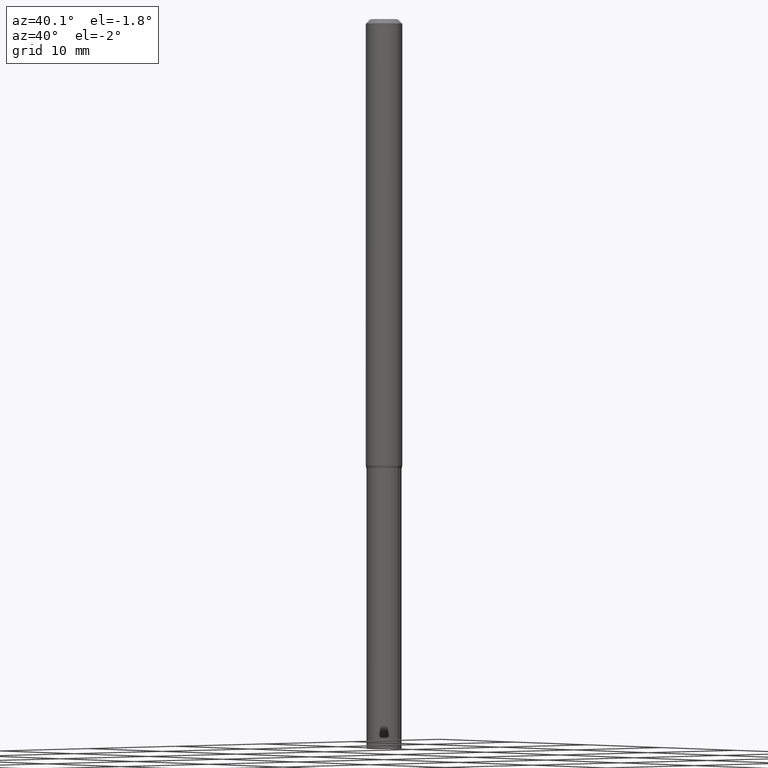
[diagram: clean part render]
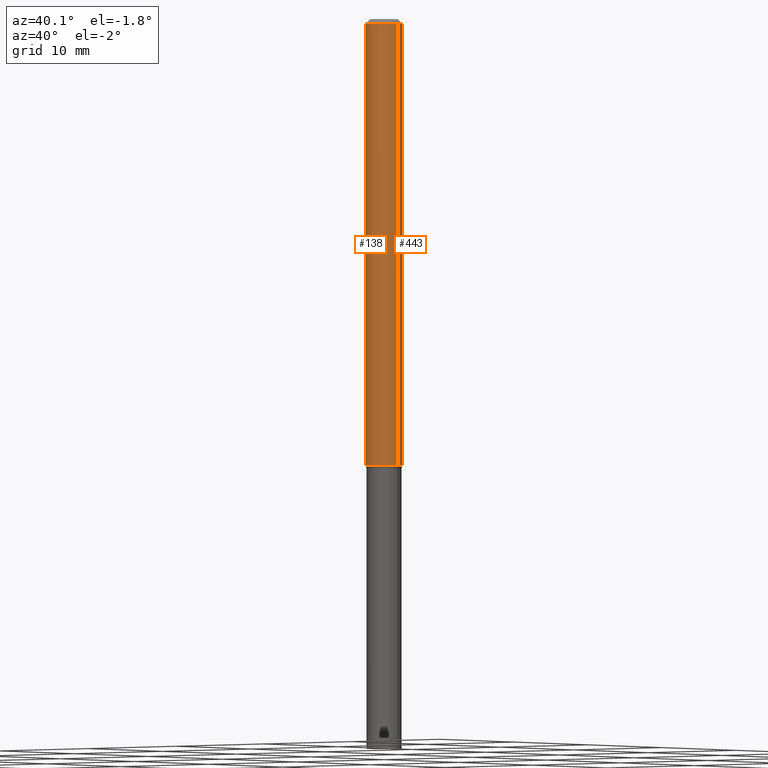
[diagram: same view with one multi-face feature highlighted, each face labeled with its STEP entity id]
A machine part, auxiliary view. The highlighted faces form ONE feature: a constant-radius fillet chain: 2 tangent blend faces with common blend radius 1.5875 mm. The faces share edges in the B-rep.
Their STEP definitions:
[1] entity #443 (Cylinder):
#3 = DIRECTION ( 'NONE',  ( 1.000000000000000000, -6.982962677686266711E-15, 0.000000000000000000 ) ) ;
#58 = DIRECTION ( 'NONE',  ( -2.445468806185136597E-29, 3.491481338843145583E-15, 1.000000000000000000 ) ) ;
#59 = EDGE_CURVE ( 'NONE', #382, #183, #306, .T. ) ;
#61 = CARTESIAN_POINT ( 'NONE',  ( 0.000000000000000000, 0.000000000000000000, 0.000000000000000000 ) ) ;
#96 = EDGE_CURVE ( 'NONE', #382, #196, #347, .T. ) ;
#131 = CARTESIAN_POINT ( 'NONE',  ( 3.743205426942595148E-29, -5.344305297442846949E-15, -1.530669872981079482 ) ) ;
#137 = DIRECTION ( 'NONE',  ( -2.445468806185136877E-29, 3.491481338843145188E-15, 1.000000000000000000 ) ) ;
#142 = AXIS2_PLACEMENT_3D ( 'NONE', #61, #318, #357 ) ;
#151 = EDGE_LOOP ( 'NONE', ( #336, #190, #258, #274 ) ) ;
#165 = AXIS2_PLACEMENT_3D ( 'NONE', #131, #58, #321 ) ;
#173 = EDGE_CURVE ( 'NONE', #196, #216, #448, .T. ) ;
#180 = CARTESIAN_POINT ( 'NONE',  ( 3.668203209277705088E-31, -5.237222008264718399E-17, -0.01499999999999999944 ) ) ;
#181 = DIRECTION ( 'NONE',  ( -2.445468806185136597E-29, 3.491481338843145583E-15, 1.000000000000000000 ) ) ;
#183 = VERTEX_POINT ( 'NONE', #194 ) ;
#190 = ORIENTED_EDGE ( 'NONE', *, *, #289, .T. ) ;
#194 = CARTESIAN_POINT ( 'NONE',  ( -0.06250000000000000000, -4.900216087592785122E-15, -1.530669872981079482 ) ) ;
#196 = VERTEX_POINT ( 'NONE', #231 ) ;
#216 = VERTEX_POINT ( 'NONE', #300 ) ;
#229 = AXIS2_PLACEMENT_3D ( 'NONE', #180, #181, #3 ) ;
#231 = CARTESIAN_POINT ( 'NONE',  ( 0.06250000000000000000, -4.888073874380388472E-16, -0.01499999999999999944 ) ) ;
#245 = DIRECTION ( 'NONE',  ( -2.445468806185136877E-29, 3.491481338843145188E-15, 1.000000000000000000 ) ) ;
#258 = ORIENTED_EDGE ( 'NONE', *, *, #173, .F. ) ;
#274 = ORIENTED_EDGE ( 'NONE', *, *, #96, .F. ) ;
#279 = CARTESIAN_POINT ( 'NONE',  ( 0.06250000000000000000, -5.780740464798238618E-15, -1.530669872981079482 ) ) ;
#289 = EDGE_CURVE ( 'NONE', #183, #216, #422, .T. ) ;
#300 = CARTESIAN_POINT ( 'NONE',  ( -0.06250000000000000000, -2.254249548912684990E-15, -0.01499999999999999944 ) ) ;
#306 = CIRCLE ( 'NONE', #165, 0.06250000000000000000 ) ;
#318 = DIRECTION ( 'NONE',  ( -2.445468806185136597E-29, 3.491481338843145583E-15, 1.000000000000000000 ) ) ;
#321 = DIRECTION ( 'NONE',  ( 1.000000000000000000, -6.982962677686262766E-15, 0.000000000000000000 ) ) ;
#336 = ORIENTED_EDGE ( 'NONE', *, *, #59, .T. ) ;
#347 = LINE ( 'NONE', #457, #465 ) ;
#357 = DIRECTION ( 'NONE',  ( 1.000000000000000000, -6.982962677686266711E-15, 4.876176775795935793E-29 ) ) ;
#382 = VERTEX_POINT ( 'NONE', #279 ) ;
#387 = FACE_OUTER_BOUND ( 'NONE', #151, .T. ) ;
#390 = CYLINDRICAL_SURFACE ( 'NONE', #142, 0.06250000000000000000 ) ;
#422 = LINE ( 'NONE', #430, #463 ) ;
#430 = CARTESIAN_POINT ( 'NONE',  ( -0.06250000000000000000, 4.440892098500626162E-16, -3.074334431409316114E-30 ) ) ;
#443 = ADVANCED_FACE ( 'NONE', ( #387 ), #390, .T. ) ;
#448 = CIRCLE ( 'NONE', #229, 0.06250000000000000000 ) ;
#457 = CARTESIAN_POINT ( 'NONE',  ( 0.06250000000000000000, -4.364351673553916694E-16, 3.047610484872459871E-30 ) ) ;
#463 = VECTOR ( 'NONE', #137, 39.37007874015748143 ) ;
#465 = VECTOR ( 'NONE', #245, 39.37007874015748143 ) ;
[2] entity #138 (Cylinder):
#29 = CARTESIAN_POINT ( 'NONE',  ( 3.668203209277705088E-31, -5.237222008264718399E-17, -0.01499999999999999944 ) ) ;
#43 = AXIS2_PLACEMENT_3D ( 'NONE', #69, #304, #212 ) ;
#69 = CARTESIAN_POINT ( 'NONE',  ( 0.000000000000000000, 0.000000000000000000, 0.000000000000000000 ) ) ;
#71 = AXIS2_PLACEMENT_3D ( 'NONE', #29, #100, #466 ) ;
#96 = EDGE_CURVE ( 'NONE', #382, #196, #347, .T. ) ;
#100 = DIRECTION ( 'NONE',  ( -2.445468806185136597E-29, 3.491481338843145583E-15, 1.000000000000000000 ) ) ;
#110 = EDGE_CURVE ( 'NONE', #183, #382, #360, .T. ) ;
#137 = DIRECTION ( 'NONE',  ( -2.445468806185136877E-29, 3.491481338843145188E-15, 1.000000000000000000 ) ) ;
#138 = ADVANCED_FACE ( 'NONE', ( #464 ), #144, .T. ) ;
#144 = CYLINDRICAL_SURFACE ( 'NONE', #43, 0.06250000000000000000 ) ;
#160 = ORIENTED_EDGE ( 'NONE', *, *, #96, .T. ) ;
#183 = VERTEX_POINT ( 'NONE', #194 ) ;
#193 = ORIENTED_EDGE ( 'NONE', *, *, #110, .T. ) ;
#194 = CARTESIAN_POINT ( 'NONE',  ( -0.06250000000000000000, -4.900216087592785122E-15, -1.530669872981079482 ) ) ;
#196 = VERTEX_POINT ( 'NONE', #231 ) ;
#212 = DIRECTION ( 'NONE',  ( 1.000000000000000000, -6.982962677686266711E-15, 4.876176775795935793E-29 ) ) ;
#214 = CIRCLE ( 'NONE', #71, 0.06250000000000000000 ) ;
#216 = VERTEX_POINT ( 'NONE', #300 ) ;
#231 = CARTESIAN_POINT ( 'NONE',  ( 0.06250000000000000000, -4.888073874380388472E-16, -0.01499999999999999944 ) ) ;
#238 = ORIENTED_EDGE ( 'NONE', *, *, #312, .F. ) ;
#240 = CARTESIAN_POINT ( 'NONE',  ( 3.743205426942595148E-29, -5.344305297442846949E-15, -1.530669872981079482 ) ) ;
#245 = DIRECTION ( 'NONE',  ( -2.445468806185136877E-29, 3.491481338843145188E-15, 1.000000000000000000 ) ) ;
#279 = CARTESIAN_POINT ( 'NONE',  ( 0.06250000000000000000, -5.780740464798238618E-15, -1.530669872981079482 ) ) ;
#280 = DIRECTION ( 'NONE',  ( 1.000000000000000000, -6.982962677686262766E-15, 0.000000000000000000 ) ) ;
#289 = EDGE_CURVE ( 'NONE', #183, #216, #422, .T. ) ;
#300 = CARTESIAN_POINT ( 'NONE',  ( -0.06250000000000000000, -2.254249548912684990E-15, -0.01499999999999999944 ) ) ;
#304 = DIRECTION ( 'NONE',  ( -2.445468806185136597E-29, 3.491481338843145583E-15, 1.000000000000000000 ) ) ;
#312 = EDGE_CURVE ( 'NONE', #216, #196, #214, .T. ) ;
#334 = ORIENTED_EDGE ( 'NONE', *, *, #289, .F. ) ;
#347 = LINE ( 'NONE', #457, #465 ) ;
#360 = CIRCLE ( 'NONE', #417, 0.06250000000000000000 ) ;
#370 = EDGE_LOOP ( 'NONE', ( #334, #193, #160, #238 ) ) ;
#382 = VERTEX_POINT ( 'NONE', #279 ) ;
#417 = AXIS2_PLACEMENT_3D ( 'NONE', #240, #460, #280 ) ;
#422 = LINE ( 'NONE', #430, #463 ) ;
#430 = CARTESIAN_POINT ( 'NONE',  ( -0.06250000000000000000, 4.440892098500626162E-16, -3.074334431409316114E-30 ) ) ;
#457 = CARTESIAN_POINT ( 'NONE',  ( 0.06250000000000000000, -4.364351673553916694E-16, 3.047610484872459871E-30 ) ) ;
#460 = DIRECTION ( 'NONE',  ( -2.445468806185136597E-29, 3.491481338843145583E-15, 1.000000000000000000 ) ) ;
#463 = VECTOR ( 'NONE', #137, 39.37007874015748143 ) ;
#464 = FACE_OUTER_BOUND ( 'NONE', #370, .T. ) ;
#465 = VECTOR ( 'NONE', #245, 39.37007874015748143 ) ;
#466 = DIRECTION ( 'NONE',  ( 1.000000000000000000, -6.982962677686266711E-15, 0.000000000000000000 ) ) ;